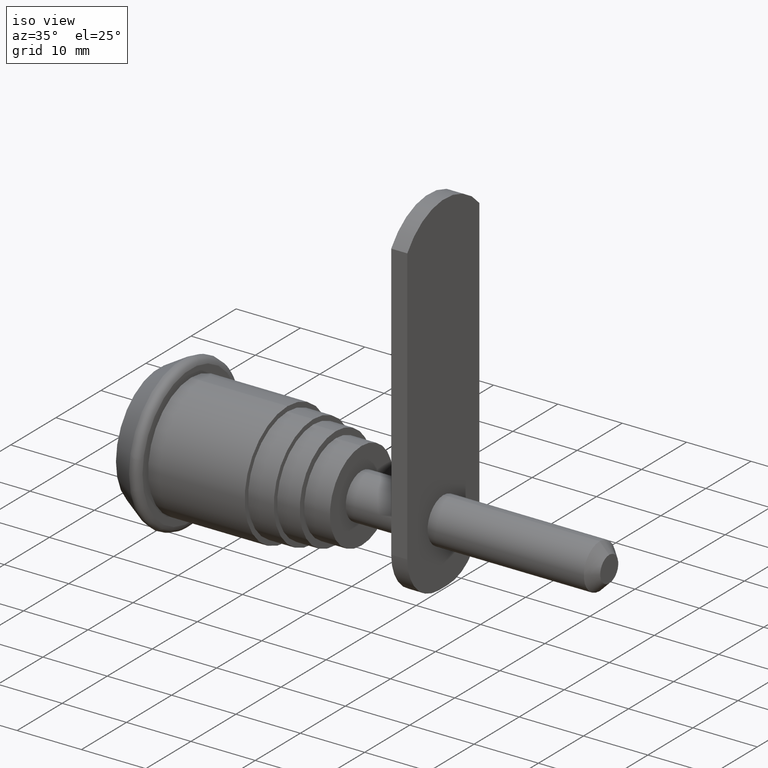
[diagram: clean part render]
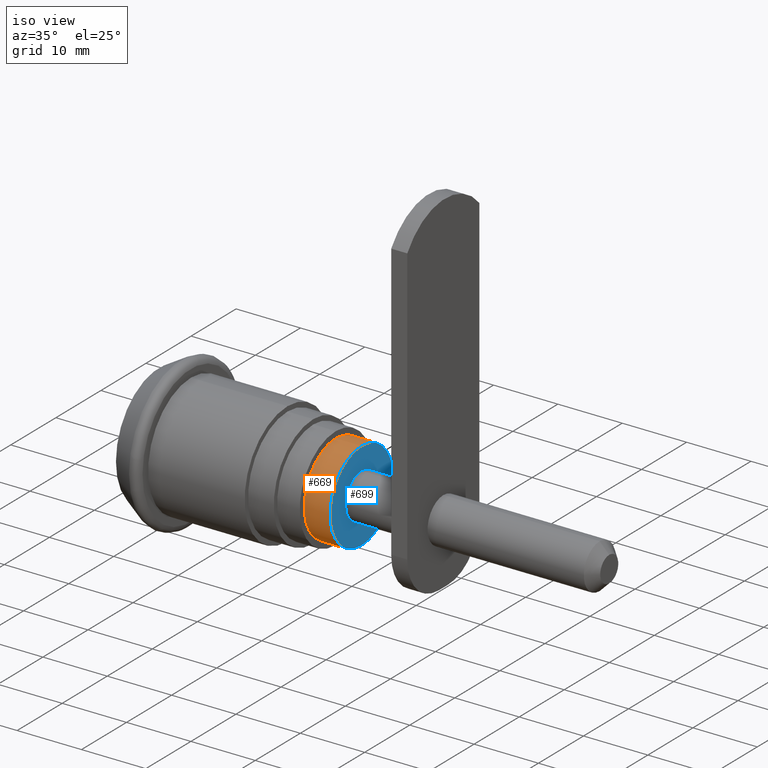
[diagram: same view with the hole feature highlighted: cylindrical wall and planar end face, labeled with their STEP entity ids]
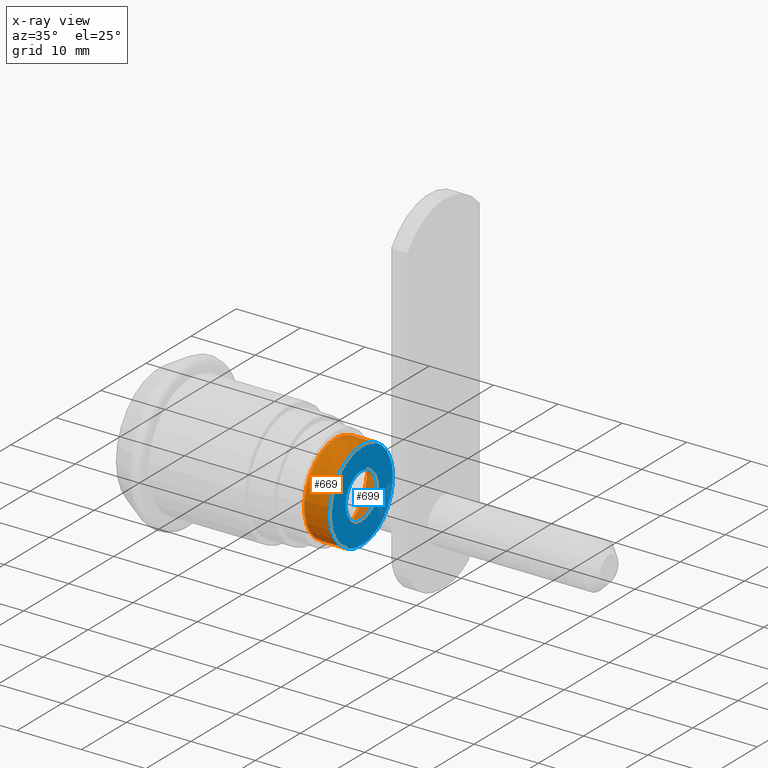
[diagram: x-ray of the same camera — body ghosted, the hole faces saturated]
A machine part, iso view. The highlighted faces form one hole feature of diameter 14 mm: the cylindrical wall (entity #669, orange) and its adjacent planar end face (entity #699, blue) — they share a circular edge in the B-rep.
The next image is the same camera in x-ray (body ghosted, the hole faces saturated) — the bore reads through the body.
Wall:
#614=CARTESIAN_POINT('',(27.500068818492764,0.0,-6.999999999971806));
#615=VERTEX_POINT('',#614);
#616=CARTESIAN_POINT('',(27.500068818492764,0.0,6.999999999971806));
#617=VERTEX_POINT('',#616);
#618=CARTESIAN_POINT('',(27.500068818492764,0.0,0.0));
#619=DIRECTION('',(1.0,0.0,0.0));
#620=DIRECTION('',(0.0,0.0,1.0));
#621=AXIS2_PLACEMENT_3D('',#618,#619,#620);
#622=CIRCLE('',#621,6.999999999971806);
#623=EDGE_CURVE('',#615,#617,#622,.T.);
#625=CARTESIAN_POINT('',(27.500068818492764,0.0,0.0));
#626=DIRECTION('',(1.0,0.0,0.0));
#627=DIRECTION('',(0.0,0.0,1.0));
#628=AXIS2_PLACEMENT_3D('',#625,#626,#627);
#629=CIRCLE('',#628,6.999999999971806);
#630=EDGE_CURVE('',#617,#615,#629,.T.);
#635=CARTESIAN_POINT('',(27.500068818492764,0.0,0.0));
#636=DIRECTION('',(1.0,0.0,0.0));
#637=DIRECTION('',(0.0,0.0,1.0));
#638=AXIS2_PLACEMENT_3D('',#635,#636,#637);
#639=CYLINDRICAL_SURFACE('',#638,6.999999999971806);
#640=CARTESIAN_POINT('',(31.500091757966402,0.0,-6.999999999971806));
#641=VERTEX_POINT('',#640);
#642=CARTESIAN_POINT('',(31.500091757966402,0.0,6.999999999971806));
#643=VERTEX_POINT('',#642);
#644=CARTESIAN_POINT('',(31.500091757966402,0.0,0.0));
#645=DIRECTION('',(1.0,0.0,0.0));
#646=DIRECTION('',(0.0,0.0,1.0));
#647=AXIS2_PLACEMENT_3D('',#644,#645,#646);
#648=CIRCLE('',#647,6.999999999971806);
#649=EDGE_CURVE('',#641,#643,#648,.T.);
#650=ORIENTED_EDGE('',*,*,#649,.F.);
#651=CARTESIAN_POINT('',(31.500091757966402,0.0,0.0));
#652=DIRECTION('',(1.0,0.0,0.0));
#653=DIRECTION('',(0.0,0.0,1.0));
#654=AXIS2_PLACEMENT_3D('',#651,#652,#653);
#655=CIRCLE('',#654,6.999999999971806);
#656=EDGE_CURVE('',#643,#641,#655,.T.);
#657=ORIENTED_EDGE('',*,*,#656,.F.);
#658=CARTESIAN_POINT('',(27.500068818492764,0.0,6.999999999971806));
#659=DIRECTION('',(1.0,0.0,0.0));
#660=VECTOR('',#659,4.000022939473638);
#661=LINE('',#658,#660);
#662=EDGE_CURVE('',#617,#643,#661,.T.);
#663=ORIENTED_EDGE('',*,*,#662,.F.);
#664=ORIENTED_EDGE('',*,*,#630,.T.);
#665=ORIENTED_EDGE('',*,*,#623,.T.);
#666=ORIENTED_EDGE('',*,*,#662,.T.);
#667=EDGE_LOOP('',(#650,#657,#663,#664,#665,#666));
#668=FACE_OUTER_BOUND('',#667,.T.);
#669=ADVANCED_FACE('',(#668),#639,.T.);
End face:
#640=CARTESIAN_POINT('',(31.500091757966402,0.0,-6.999999999971806));
#641=VERTEX_POINT('',#640);
#642=CARTESIAN_POINT('',(31.500091757966402,0.0,6.999999999971806));
#643=VERTEX_POINT('',#642);
#644=CARTESIAN_POINT('',(31.500091757966402,0.0,0.0));
#645=DIRECTION('',(1.0,0.0,0.0));
#646=DIRECTION('',(0.0,0.0,1.0));
#647=AXIS2_PLACEMENT_3D('',#644,#645,#646);
#648=CIRCLE('',#647,6.999999999971806);
#649=EDGE_CURVE('',#641,#643,#648,.T.);
#651=CARTESIAN_POINT('',(31.500091757966402,0.0,0.0));
#652=DIRECTION('',(1.0,0.0,0.0));
#653=DIRECTION('',(0.0,0.0,1.0));
#654=AXIS2_PLACEMENT_3D('',#651,#652,#653);
#655=CIRCLE('',#654,6.999999999971806);
#656=EDGE_CURVE('',#643,#641,#655,.T.);
#670=CARTESIAN_POINT('',(31.500091757966402,8.400004724397149,-8.400004724397002));
#671=DIRECTION('',(1.0,0.0,0.0));
#672=DIRECTION('',(0.0,0.0,1.0));
#673=AXIS2_PLACEMENT_3D('',#670,#671,#672);
#674=PLANE('',#673);
#675=ORIENTED_EDGE('',*,*,#656,.T.);
#676=ORIENTED_EDGE('',*,*,#649,.T.);
#677=EDGE_LOOP('',(#675,#676));
#678=FACE_OUTER_BOUND('',#677,.T.);
#679=CARTESIAN_POINT('',(31.500091757966402,0.0,-3.499999999985448));
#680=VERTEX_POINT('',#679);
#681=CARTESIAN_POINT('',(31.500091757966402,0.0,3.499999999985448));
#682=VERTEX_POINT('',#681);
#683=CARTESIAN_POINT('',(31.500091757966402,0.0,0.0));
#684=DIRECTION('',(1.0,0.0,0.0));
#685=DIRECTION('',(0.0,0.0,1.0));
#686=AXIS2_PLACEMENT_3D('',#683,#684,#685);
#687=CIRCLE('',#686,3.499999999985448);
#688=EDGE_CURVE('',#680,#682,#687,.T.);
#689=ORIENTED_EDGE('',*,*,#688,.F.);
#690=CARTESIAN_POINT('',(31.500091757966402,0.0,0.0));
#691=DIRECTION('',(1.0,0.0,0.0));
#692=DIRECTION('',(0.0,0.0,1.0));
#693=AXIS2_PLACEMENT_3D('',#690,#691,#692);
#694=CIRCLE('',#693,3.499999999985448);
#695=EDGE_CURVE('',#682,#680,#694,.T.);
#696=ORIENTED_EDGE('',*,*,#695,.F.);
#697=EDGE_LOOP('',(#689,#696));
#698=FACE_BOUND('',#697,.T.);
#699=ADVANCED_FACE('',(#678,#698),#674,.T.);